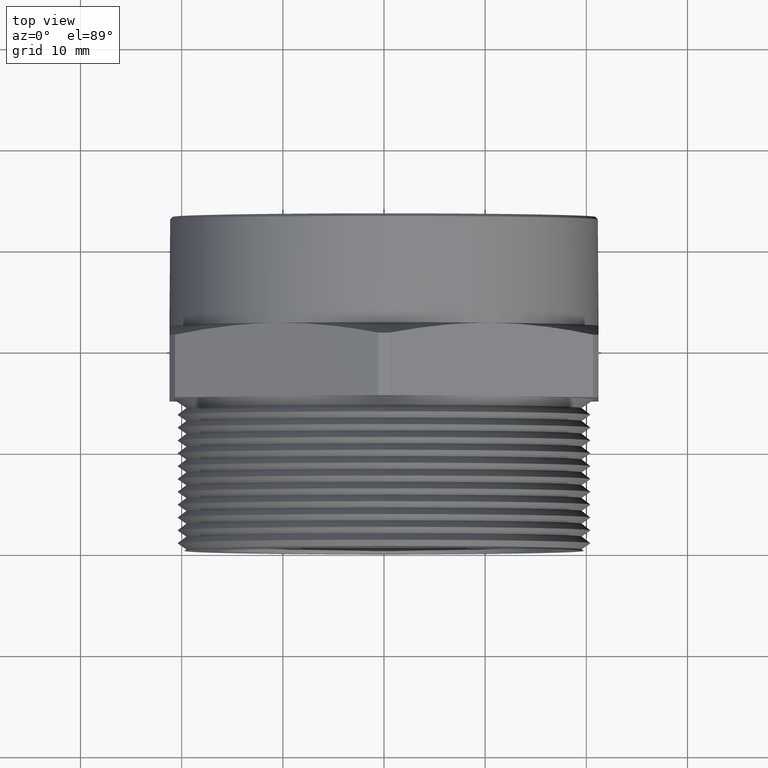
[diagram: clean part render]
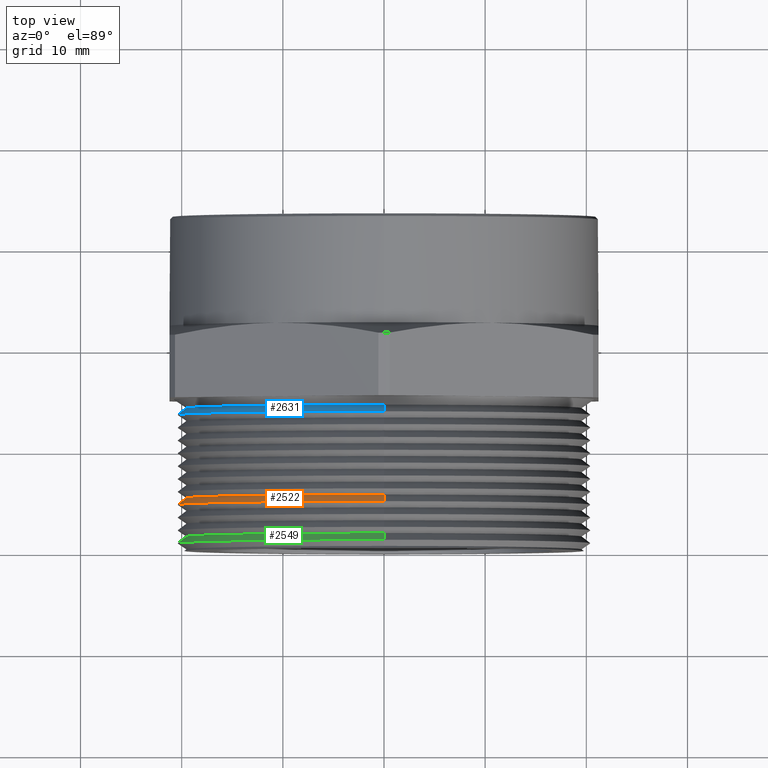
[diagram: same view with three faces highlighted in distinct colors, each labeled with its STEP entity id]
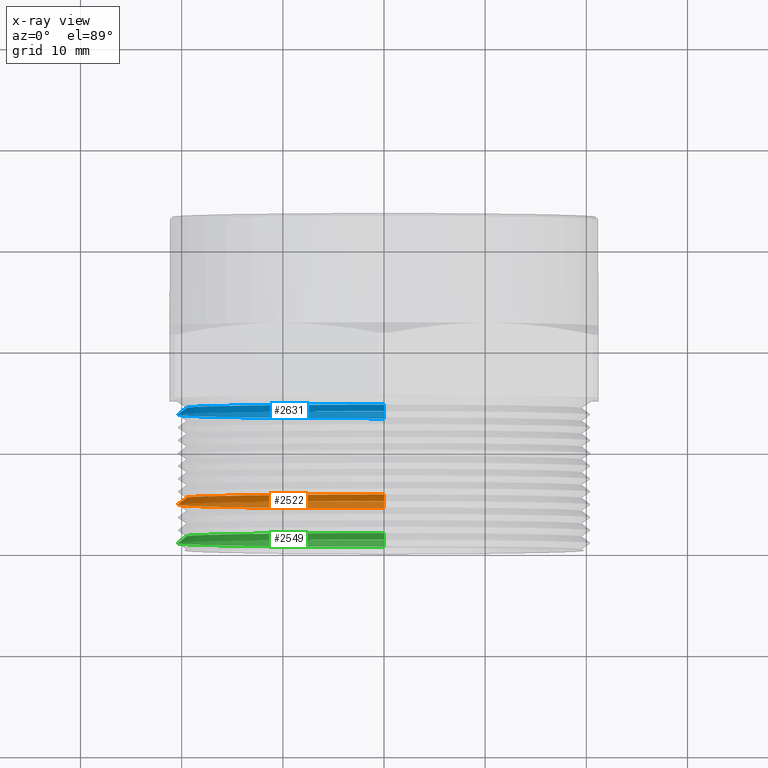
[diagram: x-ray of the same camera — body ghosted, the three highlighted faces saturated]
A machine part, top view with three faces highlighted in distinct colors.
The next image is the same camera in x-ray (body ghosted, the three faces saturated) — at least one of them is partly hidden behind the body in this view.
Their STEP definitions:

[orange] entity #2522 — the highlighted conical surface has half-angle 53.5 deg.
#272 = CARTESIAN_POINT ( 'NONE',  ( 9.637165578884865200E-017, 0.2063104676866715200, 0.7691006689245971600 ) ) ;
#273 = CARTESIAN_POINT ( 'NONE',  ( 0.0000000000000000000, 0.2063104676866715200, -0.7691006689245971600 ) ) ;
#289 = CARTESIAN_POINT ( 'NONE',  ( 9.855564433563770300E-017, 0.1799180986532962200, 0.8047679086268464400 ) ) ;
#295 = CARTESIAN_POINT ( 'NONE',  ( 0.0000000000000000000, 0.1799180986532962200, -0.8047679086268464400 ) ) ;
#957 = DIRECTION ( 'NONE',  ( 0.0000000000000000000, -0.5948227867513444800, -0.8038568606172148400 ) ) ;
#958 = VECTOR ( 'NONE', #957, 39.37007874015748900 ) ;
#959 = CARTESIAN_POINT ( 'NONE',  ( 0.0000000000000000000, 0.1700032405425555800, -0.8181670703467501800 ) ) ;
#960 = LINE ( 'NONE', #959, #958 ) ;
#961 = DIRECTION ( 'NONE',  ( 9.844407313275122100E-017, -0.5948227867513444800, 0.8038568606172148400 ) ) ;
#962 = VECTOR ( 'NONE', #961, 39.37007874015748900 ) ;
#963 = CARTESIAN_POINT ( 'NONE',  ( 1.001965683867915000E-016, 0.1700032405425555800, 0.8181670703467501800 ) ) ;
#964 = LINE ( 'NONE', #963, #962 ) ;
#989 = DIRECTION ( 'NONE',  ( 0.0000000000000000000, 0.0000000000000000000, 1.000000000000000000 ) ) ;
#990 = DIRECTION ( 'NONE',  ( 0.0000000000000000000, 1.000000000000000000, 0.0000000000000000000 ) ) ;
#991 = CARTESIAN_POINT ( 'NONE',  ( 0.0000000000000000000, 0.1799180986532962200, 0.0000000000000000000 ) ) ;
#992 = AXIS2_PLACEMENT_3D ( 'NONE', #991, #990, #989 ) ;
#993 = CIRCLE ( 'NONE', #992, 0.8047679086268464400 ) ;
#994 = DIRECTION ( 'NONE',  ( 0.0000000000000000000, 0.0000000000000000000, -1.000000000000000000 ) ) ;
#995 = DIRECTION ( 'NONE',  ( -0.0000000000000000000, -1.000000000000000000, -0.0000000000000000000 ) ) ;
#996 = CARTESIAN_POINT ( 'NONE',  ( 0.0000000000000000000, 0.2063104676866715200, 0.0000000000000000000 ) ) ;
#997 = AXIS2_PLACEMENT_3D ( 'NONE', #996, #995, #994 ) ;
#998 = DIRECTION ( 'NONE',  ( 0.0000000000000000000, 0.0000000000000000000, -1.000000000000000000 ) ) ;
#999 = DIRECTION ( 'NONE',  ( -0.0000000000000000000, -1.000000000000000000, -0.0000000000000000000 ) ) ;
#1000 = CARTESIAN_POINT ( 'NONE',  ( 0.0000000000000000000, 0.1700032405425555800, 0.0000000000000000000 ) ) ;
#1001 = AXIS2_PLACEMENT_3D ( 'NONE', #1000, #999, #998 ) ;
#1002 = CIRCLE ( 'NONE', #997, 0.7691006689245971600 ) ;
#1003 = CONICAL_SURFACE ( 'NONE', #1001, 0.8181670703467501800, 0.9337511498169622800 ) ;
#1004 = FACE_OUTER_BOUND ( 'NONE', #2546, .T. ) ;
#2141 = VERTEX_POINT ( 'NONE', #295 ) ;
#2144 = VERTEX_POINT ( 'NONE', #289 ) ;
#2151 = VERTEX_POINT ( 'NONE', #273 ) ;
#2152 = VERTEX_POINT ( 'NONE', #272 ) ;
#2513 = EDGE_CURVE ( 'NONE', #2152, #2144, #964, .T. ) ;
#2516 = EDGE_CURVE ( 'NONE', #2151, #2141, #960, .T. ) ;
#2522 = ADVANCED_FACE ( 'NONE', ( #1004 ), #1003, .T. ) ;
#2523 = ORIENTED_EDGE ( 'NONE', *, *, #2513, .F. ) ;
#2524 = ORIENTED_EDGE ( 'NONE', *, *, #2525, .T. ) ;
#2525 = EDGE_CURVE ( 'NONE', #2152, #2151, #1002, .T. ) ;
#2526 = ORIENTED_EDGE ( 'NONE', *, *, #2516, .T. ) ;
#2527 = ORIENTED_EDGE ( 'NONE', *, *, #2528, .T. ) ;
#2528 = EDGE_CURVE ( 'NONE', #2141, #2144, #993, .T. ) ;
#2546 = EDGE_LOOP ( 'NONE', ( #2523, #2524, #2526, #2527 ) ) ;

[blue] entity #2631 — the highlighted conical surface has half-angle 53.5 deg.
#48 = VERTEX_POINT ( 'NONE', #3209 ) ;
#52 = VERTEX_POINT ( 'NONE', #3207 ) ;
#54 = VERTEX_POINT ( 'NONE', #3206 ) ;
#57 = VERTEX_POINT ( 'NONE', #3195 ) ;
#782 = DIRECTION ( 'NONE',  ( 0.0000000000000000000, -0.5948227867513444800, -0.8038568606172148400 ) ) ;
#783 = VECTOR ( 'NONE', #782, 39.37007874015748900 ) ;
#784 = CARTESIAN_POINT ( 'NONE',  ( 0.0000000000000000000, 0.5200032405425556400, -0.8181670703467501800 ) ) ;
#785 = LINE ( 'NONE', #784, #783 ) ;
#808 = DIRECTION ( 'NONE',  ( 9.844407313275122100E-017, -0.5948227867513444800, 0.8038568606172148400 ) ) ;
#809 = VECTOR ( 'NONE', #808, 39.37007874015748900 ) ;
#810 = CARTESIAN_POINT ( 'NONE',  ( 1.001965683867915000E-016, 0.5200032405425556400, 0.8181670703467501800 ) ) ;
#811 = LINE ( 'NONE', #810, #809 ) ;
#1056 = DIRECTION ( 'NONE',  ( 0.0000000000000000000, 0.0000000000000000000, -1.000000000000000000 ) ) ;
#1057 = DIRECTION ( 'NONE',  ( -0.0000000000000000000, -1.000000000000000000, -0.0000000000000000000 ) ) ;
#1058 = CARTESIAN_POINT ( 'NONE',  ( 0.0000000000000000000, 0.5563104676866715800, 0.0000000000000000000 ) ) ;
#1059 = AXIS2_PLACEMENT_3D ( 'NONE', #1058, #1057, #1056 ) ;
#1060 = CIRCLE ( 'NONE', #1059, 0.7691006689245971600 ) ;
#1137 = DIRECTION ( 'NONE',  ( 0.0000000000000000000, 0.0000000000000000000, 1.000000000000000000 ) ) ;
#1138 = DIRECTION ( 'NONE',  ( 0.0000000000000000000, 1.000000000000000000, 0.0000000000000000000 ) ) ;
#1139 = CARTESIAN_POINT ( 'NONE',  ( 0.0000000000000000000, 0.5299180986532962000, 0.0000000000000000000 ) ) ;
#1140 = AXIS2_PLACEMENT_3D ( 'NONE', #1139, #1138, #1137 ) ;
#1141 = CIRCLE ( 'NONE', #1140, 0.8047679086268464400 ) ;
#1167 = CONICAL_SURFACE ( 'NONE', #1229, 0.8181670703467501800, 0.9337511498169622800 ) ;
#1168 = FACE_OUTER_BOUND ( 'NONE', #2557, .T. ) ;
#1226 = DIRECTION ( 'NONE',  ( 0.0000000000000000000, 0.0000000000000000000, -1.000000000000000000 ) ) ;
#1227 = DIRECTION ( 'NONE',  ( -0.0000000000000000000, -1.000000000000000000, -0.0000000000000000000 ) ) ;
#1228 = CARTESIAN_POINT ( 'NONE',  ( 0.0000000000000000000, 0.5200032405425556400, 0.0000000000000000000 ) ) ;
#1229 = AXIS2_PLACEMENT_3D ( 'NONE', #1228, #1227, #1226 ) ;
#2406 = EDGE_CURVE ( 'NONE', #52, #54, #785, .T. ) ;
#2428 = EDGE_CURVE ( 'NONE', #48, #57, #811, .T. ) ;
#2557 = EDGE_LOOP ( 'NONE', ( #2558, #2559, #2561, #2611 ) ) ;
#2558 = ORIENTED_EDGE ( 'NONE', *, *, #2428, .F. ) ;
#2559 = ORIENTED_EDGE ( 'NONE', *, *, #2560, .T. ) ;
#2560 = EDGE_CURVE ( 'NONE', #48, #52, #1060, .T. ) ;
#2561 = ORIENTED_EDGE ( 'NONE', *, *, #2406, .T. ) ;
#2611 = ORIENTED_EDGE ( 'NONE', *, *, #2612, .T. ) ;
#2612 = EDGE_CURVE ( 'NONE', #54, #57, #1141, .T. ) ;
#2631 = ADVANCED_FACE ( 'NONE', ( #1168 ), #1167, .T. ) ;
#3195 = CARTESIAN_POINT ( 'NONE',  ( 9.855564433563771500E-017, 0.5299180986532962000, 0.8047679086268464400 ) ) ;
#3206 = CARTESIAN_POINT ( 'NONE',  ( 0.0000000000000000000, 0.5299180986532962000, -0.8047679086268464400 ) ) ;
#3207 = CARTESIAN_POINT ( 'NONE',  ( 0.0000000000000000000, 0.5563104676866715800, -0.7691006689245971600 ) ) ;
#3209 = CARTESIAN_POINT ( 'NONE',  ( 9.637165578884865200E-017, 0.5563104676866715800, 0.7691006689245971600 ) ) ;

[green] entity #2549 — the highlighted conical surface has half-angle 53.5 deg.
#100 = CARTESIAN_POINT ( 'NONE',  ( 0.0000000000000000000, 0.02991809865329619600, -0.8047679086268464400 ) ) ;
#110 = CARTESIAN_POINT ( 'NONE',  ( 9.855564433563770300E-017, 0.02991809865329619600, 0.8047679086268464400 ) ) ;
#884 = DIRECTION ( 'NONE',  ( 9.844407313275122100E-017, -0.5948227867513444800, 0.8038568606172148400 ) ) ;
#885 = VECTOR ( 'NONE', #884, 39.37007874015748900 ) ;
#886 = CARTESIAN_POINT ( 'NONE',  ( 1.001965683867915000E-016, 0.02000324054255555100, 0.8181670703467501800 ) ) ;
#887 = LINE ( 'NONE', #886, #885 ) ;
#944 = DIRECTION ( 'NONE',  ( 0.0000000000000000000, -0.5948227867513444800, -0.8038568606172148400 ) ) ;
#945 = VECTOR ( 'NONE', #944, 39.37007874015748900 ) ;
#946 = CARTESIAN_POINT ( 'NONE',  ( 0.0000000000000000000, 0.02000324054255555100, -0.8181670703467501800 ) ) ;
#947 = LINE ( 'NONE', #946, #945 ) ;
#1011 = CARTESIAN_POINT ( 'NONE',  ( 0.0000000000000000000, 0.02000324054255555100, 0.0000000000000000000 ) ) ;
#1012 = AXIS2_PLACEMENT_3D ( 'NONE', #1011, #1071, #1070 ) ;
#1013 = CONICAL_SURFACE ( 'NONE', #1012, 0.8181670703467501800, 0.9337511498169622800 ) ;
#1014 = FACE_OUTER_BOUND ( 'NONE', #2550, .T. ) ;
#1061 = DIRECTION ( 'NONE',  ( 0.0000000000000000000, 0.0000000000000000000, 1.000000000000000000 ) ) ;
#1062 = DIRECTION ( 'NONE',  ( 0.0000000000000000000, 1.000000000000000000, 0.0000000000000000000 ) ) ;
#1063 = CARTESIAN_POINT ( 'NONE',  ( 0.0000000000000000000, 0.02991809865329619600, 0.0000000000000000000 ) ) ;
#1064 = AXIS2_PLACEMENT_3D ( 'NONE', #1063, #1062, #1061 ) ;
#1065 = CIRCLE ( 'NONE', #1064, 0.8047679086268464400 ) ;
#1066 = DIRECTION ( 'NONE',  ( 0.0000000000000000000, 0.0000000000000000000, -1.000000000000000000 ) ) ;
#1067 = DIRECTION ( 'NONE',  ( -0.0000000000000000000, -1.000000000000000000, -0.0000000000000000000 ) ) ;
#1068 = CARTESIAN_POINT ( 'NONE',  ( 0.0000000000000000000, 0.05631046768667148000, 0.0000000000000000000 ) ) ;
#1069 = AXIS2_PLACEMENT_3D ( 'NONE', #1068, #1067, #1066 ) ;
#1070 = DIRECTION ( 'NONE',  ( 0.0000000000000000000, 0.0000000000000000000, -1.000000000000000000 ) ) ;
#1071 = DIRECTION ( 'NONE',  ( -0.0000000000000000000, -1.000000000000000000, -0.0000000000000000000 ) ) ;
#1072 = CIRCLE ( 'NONE', #1069, 0.7691006689245971600 ) ;
#2035 = VERTEX_POINT ( 'NONE', #3331 ) ;
#2036 = VERTEX_POINT ( 'NONE', #3330 ) ;
#2043 = VERTEX_POINT ( 'NONE', #110 ) ;
#2050 = VERTEX_POINT ( 'NONE', #100 ) ;
#2485 = EDGE_CURVE ( 'NONE', #2035, #2043, #887, .T. ) ;
#2488 = EDGE_CURVE ( 'NONE', #2036, #2050, #947, .T. ) ;
#2549 = ADVANCED_FACE ( 'NONE', ( #1014 ), #1013, .T. ) ;
#2550 = EDGE_LOOP ( 'NONE', ( #2551, #2552, #2554, #2555 ) ) ;
#2551 = ORIENTED_EDGE ( 'NONE', *, *, #2485, .F. ) ;
#2552 = ORIENTED_EDGE ( 'NONE', *, *, #2553, .T. ) ;
#2553 = EDGE_CURVE ( 'NONE', #2035, #2036, #1072, .T. ) ;
#2554 = ORIENTED_EDGE ( 'NONE', *, *, #2488, .T. ) ;
#2555 = ORIENTED_EDGE ( 'NONE', *, *, #2556, .T. ) ;
#2556 = EDGE_CURVE ( 'NONE', #2050, #2043, #1065, .T. ) ;
#3330 = CARTESIAN_POINT ( 'NONE',  ( 0.0000000000000000000, 0.05631046768667148000, -0.7691006689245971600 ) ) ;
#3331 = CARTESIAN_POINT ( 'NONE',  ( 9.637165578884865200E-017, 0.05631046768667148000, 0.7691006689245971600 ) ) ;